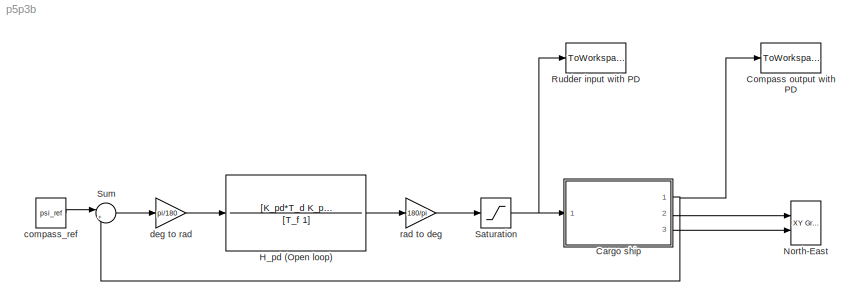
MODEL p5p3b
KIND model
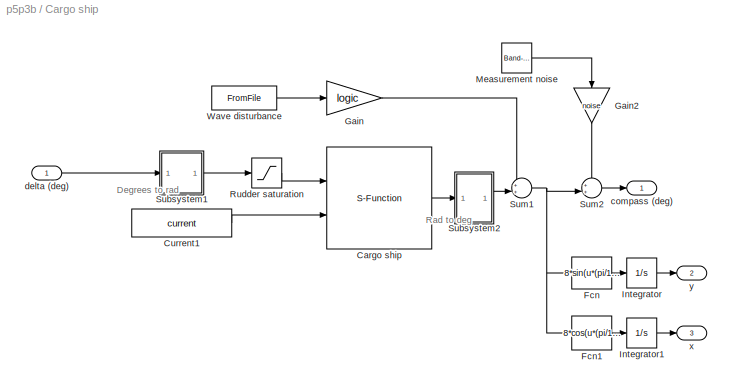
BLOCK [SubSystem] Cargo ship
  Ports = [1, 3]
  RequestExecContextInheritance = off
  SID = 1
  Variant = off
BLOCK [S-Function] Cargo ship/Cargo ship
  EnableBusSupport = off
  FunctionName = Cargoship
  Ports = [2, 1]
  SFcnIsStateOwnerBlock = off
  SFunctionDeploymentMode = off
  SID = 3
BLOCK [Constant] Cargo ship/Current1
  SID = 4
  Value = current
BLOCK [Fcn] Cargo ship/Fcn
  Expr = 8*sin(u*(pi/180))
  SID = 5
BLOCK [Fcn] Cargo ship/Fcn1
  Expr = 8*cos(u*(pi/180))
  SID = 6
BLOCK [Gain] Cargo ship/Gain
  Gain = logic
  SID = 7
BLOCK [Gain] Cargo ship/Gain2
  Gain = noise
  SID = 8
BLOCK [Integrator] Cargo ship/Integrator
  Ports = [1, 1]
  SID = 9
BLOCK [Integrator] Cargo ship/Integrator1
  Ports = [1, 1]
  SID = 10
BLOCK [Reference] Cargo ship/Measurement noise  REF=simulink/Sources/Band-Limited\nWhite Noise
  Cov = [0.001]
  Ports = [0, 1]
  SID = 11
  SourceBlock = simulink/Sources/Band-Limited\nWhite Noise
  SourceProductBaseCode = SL
  SourceProductName = Simulink
  SourceType = Band-Limited White Noise.
  Ts = .5
  VectorParams1D = on
  seed = [23341]
BLOCK [Saturate] Cargo ship/Rudder saturation
  InputPortMap = u0
  LowerLimit = -45*(pi/180)
  Ports = [1, 1]
  SID = 12
  UpperLimit = 45*(pi/180)
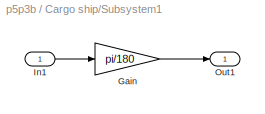
BLOCK [SubSystem] Cargo ship/Subsystem1
  Ports = [1, 1]
  RequestExecContextInheritance = off
  SID = 13
  Variant = off
BLOCK [Gain] Cargo ship/Subsystem1/Gain
  Gain = pi/180
  SID = 15
BLOCK [Inport] Cargo ship/Subsystem1/In1
  IconDisplay = Port number
  SID = 14
BLOCK [Outport] Cargo ship/Subsystem1/Out1
  IconDisplay = Port number
  SID = 16
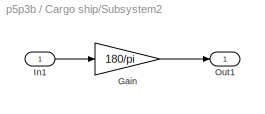
BLOCK [SubSystem] Cargo ship/Subsystem2
  Ports = [1, 1]
  RequestExecContextInheritance = off
  SID = 17
  Variant = off
BLOCK [Gain] Cargo ship/Subsystem2/Gain
  Gain = 180/pi
  SID = 19
BLOCK [Inport] Cargo ship/Subsystem2/In1
  IconDisplay = Port number
  SID = 18
BLOCK [Outport] Cargo ship/Subsystem2/Out1
  IconDisplay = Port number
  SID = 20
BLOCK [Sum] Cargo ship/Sum1
  IconShape = round
  InputSameDT = off
  Inputs = ++|
  OutDataTypeStr = Inherit: Inherit via internal rule
  Ports = [2, 1]
  SID = 21
BLOCK [Sum] Cargo ship/Sum2
  IconShape = round
  InputSameDT = off
  Inputs = ++|
  OutDataTypeStr = Inherit: Inherit via internal rule
  Ports = [2, 1]
  SID = 22
BLOCK [FromFile] Cargo ship/Wave disturbance
  FileName = wave.mat
  SID = 23
  SampleTime = 0
BLOCK [Outport] Cargo ship/compass (deg)
  IconDisplay = Port number
  SID = 24
BLOCK [Inport] Cargo ship/delta (deg)
  IconDisplay = Port number
  SID = 2
BLOCK [Outport] Cargo ship/x
  IconDisplay = Port number
  Port = 3
  SID = 26
BLOCK [Outport] Cargo ship/y
  IconDisplay = Port number
  Port = 2
  SID = 25
BLOCK [ToWorkspace] Compass output with PD
  FixptAsFi = on
  MaxDataPoints = inf
  Ports = [1]
  SID = 43
  SampleTime = -1
  Save2DSignal = 3-D array (concatenate along third dimension)
  SaveFormat = Structure With Time
  VariableName = compass_pd
BLOCK [TransferFcn] H_pd (Open loop)
  Denominator = [T_f 1]
  Numerator = [K_pd*T_d K_pd]
  SID = 38
BLOCK [Reference] North-East  REF=simulink/Sinks/XY Graph
  Ports = [2]
  SID = 29
  SourceBlock = simulink/Sinks/XY Graph
  SourceProductBaseCode = SL
  SourceProductName = Simulink
  SourceType = XY scope.
  st = -1
  xmax = 5000
  xmin = -5000
  ymax = 5000
  ymin = -5000
BLOCK [ToWorkspace] Rudder input with PD
  FixptAsFi = on
  MaxDataPoints = inf
  Ports = [1]
  SID = 44
  SampleTime = -1
  Save2DSignal = 3-D array (concatenate along third dimension)
  SaveFormat = Structure With Time
  VariableName = rudder_pd
BLOCK [Saturate] Saturation
  InputPortMap = u0
  LowerLimit = -45
  Ports = [1, 1]
  SID = 45
  UpperLimit = 45
BLOCK [Sum] Sum
  IconShape = round
  InputSameDT = off
  Inputs = |+-
  OutDataTypeStr = Inherit: Inherit via internal rule
  Ports = [2, 1]
  SID = 42
  SaturateOnIntegerOverflow = off
BLOCK [Constant] compass_ref
  SID = 41
  Value = psi_ref
BLOCK [Gain] deg to rad
  Gain = pi/180
  OutDataTypeStr = Inherit: Inherit via internal rule
  ParamDataTypeStr = Inherit: Inherit via internal rule
  SID = 39
  SaturateOnIntegerOverflow = off
BLOCK [Gain] rad to deg
  Gain = 180/pi
  OutDataTypeStr = Inherit: Inherit via internal rule
  ParamDataTypeStr = Inherit: Inherit via internal rule
  SID = 40
  SaturateOnIntegerOverflow = off
ANNOTATION Cargo ship: Degrees to rad
ANNOTATION Cargo ship: Rad to deg
LINE Cargo ship/Cargo ship:1 -> Cargo ship/Subsystem2:1
LINE Cargo ship/Current1:1 -> Cargo ship/Cargo ship:2
LINE Cargo ship/Fcn1:1 -> Cargo ship/Integrator1:1
LINE Cargo ship/Fcn:1 -> Cargo ship/Integrator:1
LINE Cargo ship/Gain2:1 -> Cargo ship/Sum2:1
LINE Cargo ship/Gain:1 -> Cargo ship/Sum1:1
LINE Cargo ship/Integrator1:1 -> Cargo ship/x:1
LINE Cargo ship/Integrator:1 -> Cargo ship/y:1
LINE Cargo ship/Measurement noise:1 -> Cargo ship/Gain2:1
LINE Cargo ship/Rudder saturation:1 -> Cargo ship/Cargo ship:1
LINE Cargo ship/Subsystem1/Gain:1 -> Cargo ship/Subsystem1/Out1:1
LINE Cargo ship/Subsystem1/In1:1 -> Cargo ship/Subsystem1/Gain:1
LINE Cargo ship/Subsystem1:1 -> Cargo ship/Rudder saturation:1
LINE Cargo ship/Subsystem2/Gain:1 -> Cargo ship/Subsystem2/Out1:1
LINE Cargo ship/Subsystem2/In1:1 -> Cargo ship/Subsystem2/Gain:1
LINE Cargo ship/Subsystem2:1 -> Cargo ship/Sum1:2
NET Cargo ship/Sum1:1 -> Cargo ship/Fcn1:1, Cargo ship/Fcn:1, Cargo ship/Sum2:2
LINE Cargo ship/Sum2:1 -> Cargo ship/compass (deg):1
LINE Cargo ship/Wave disturbance:1 -> Cargo ship/Gain:1
LINE Cargo ship/delta (deg):1 -> Cargo ship/Subsystem1:1
NET Cargo ship:1 -> Compass output with PD:1, Sum:2
LINE Cargo ship:2 -> North-East:1
LINE Cargo ship:3 -> North-East:2
LINE H_pd (Open loop):1 -> rad to deg:1
NET Saturation:1 -> Cargo ship:1, Rudder input with PD:1
LINE Sum:1 -> deg to rad:1
LINE compass_ref:1 -> Sum:1
LINE deg to rad:1 -> H_pd (Open loop):1
LINE rad to deg:1 -> Saturation:1
note: NET lines group one-source signal fan-out (src -> all destinations, sorted); 1:1 wires keep LINE
